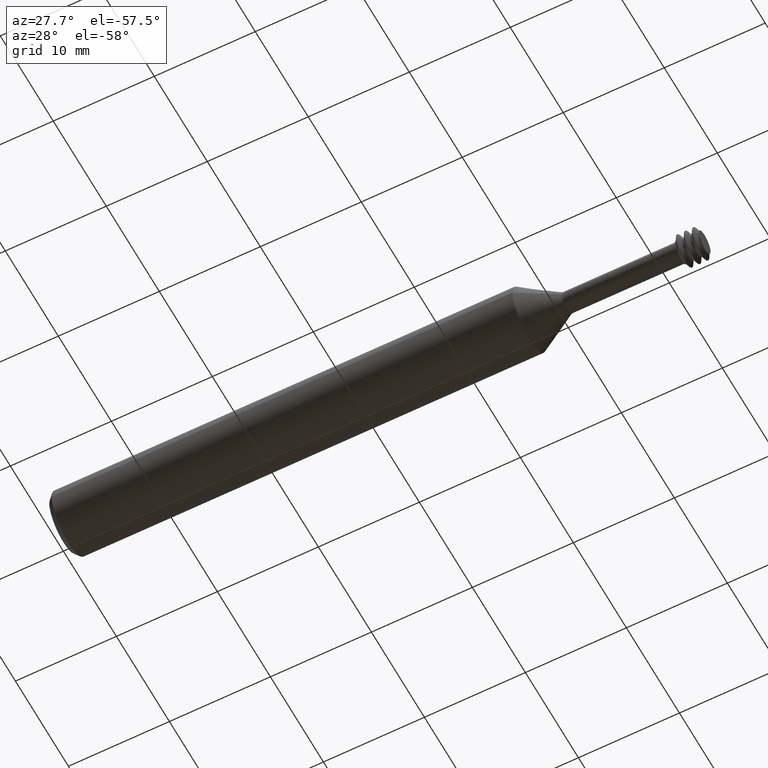
[diagram: clean part render]
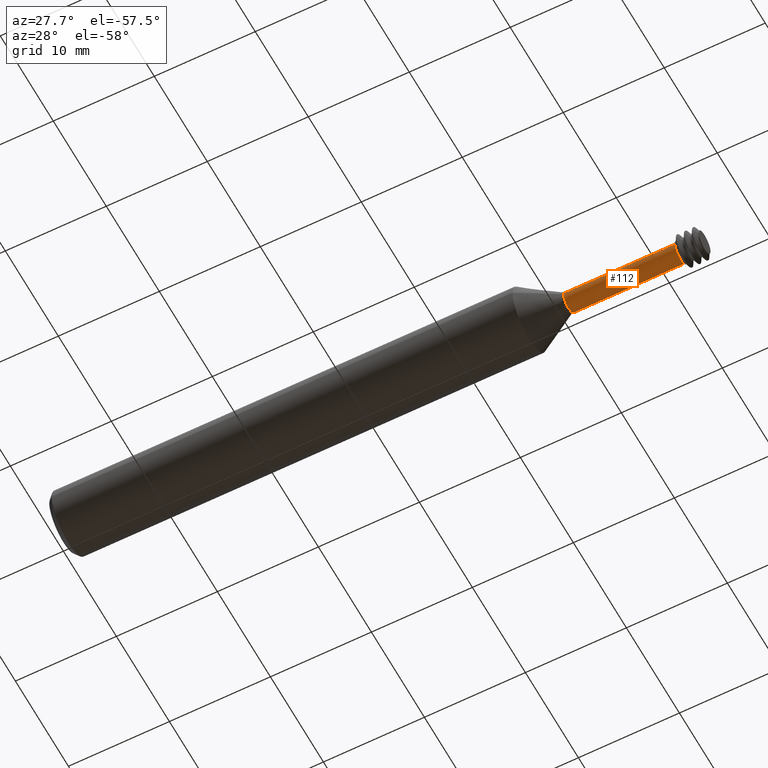
[diagram: same view with one face highlighted and labeled with its STEP entity id]
A machine part, auxiliary view. The second image highlights one B-rep face of the part: STEP entity #112.
In plain terms, the highlighted cylindrical surface (edge-blend (fillet) strip) has radius 1.016 mm, axis along (-1, 0, -0).
Its self-contained STEP definition (entity closure, byte-faithful):
#4 = CARTESIAN_POINT ( 'NONE',  ( 2.406000000000000139, -0.04000000000000004247, 0.000000000000000000 ) ) ;
#35 = DIRECTION ( 'NONE',  ( 1.000000000000000000, -2.239313081137374464E-19, 0.000000000000000000 ) ) ;
#62 = DIRECTION ( 'NONE',  ( -1.000000000000000000, 3.312725351696573770E-18, -0.000000000000000000 ) ) ;
#90 = CIRCLE ( 'NONE', #389, 0.04000000000000004247 ) ;
#112 = ADVANCED_FACE ( 'NONE', ( #324 ), #967, .T. ) ;
#131 = CARTESIAN_POINT ( 'NONE',  ( 1.970000000000000195, -0.04000000000000008410, 0.000000000000000000 ) ) ;
#169 = DIRECTION ( 'NONE',  ( -1.000000000000000000, 3.312725351696573770E-18, -0.000000000000000000 ) ) ;
#188 = CARTESIAN_POINT ( 'NONE',  ( 2.406000000000000139, 3.796279696849373925E-18, 0.000000000000000000 ) ) ;
#242 = CARTESIAN_POINT ( 'NONE',  ( 2.406000000000000139, 3.796279696849373925E-18, 0.000000000000000000 ) ) ;
#243 = AXIS2_PLACEMENT_3D ( 'NONE', #242, #169, #554 ) ;
#268 = ORIENTED_EDGE ( 'NONE', *, *, #919, .F. ) ;
#284 = VECTOR ( 'NONE', #317, 39.37007874015748143 ) ;
#298 = VERTEX_POINT ( 'NONE', #444 ) ;
#314 = VERTEX_POINT ( 'NONE', #131 ) ;
#317 = DIRECTION ( 'NONE',  ( -1.000000000000000000, 3.312725351696573770E-18, -0.000000000000000000 ) ) ;
#324 = FACE_OUTER_BOUND ( 'NONE', #767, .T. ) ;
#358 = EDGE_CURVE ( 'NONE', #696, #314, #605, .T. ) ;
#380 = CARTESIAN_POINT ( 'NONE',  ( 2.406000000000000139, 0.04000000000000004247, 4.898587196589418160E-18 ) ) ;
#387 = ORIENTED_EDGE ( 'NONE', *, *, #358, .T. ) ;
#389 = AXIS2_PLACEMENT_3D ( 'NONE', #188, #35, #618 ) ;
#428 = EDGE_CURVE ( 'NONE', #298, #560, #624, .T. ) ;
#444 = CARTESIAN_POINT ( 'NONE',  ( 2.406000000000000139, 0.04000000000000004247, 4.898587196589418160E-18 ) ) ;
#456 = CIRCLE ( 'NONE', #778, 0.04000000000000009104 ) ;
#550 = VECTOR ( 'NONE', #845, 39.37007874015748143 ) ;
#554 = DIRECTION ( 'NONE',  ( 0.000000000000000000, -1.000000000000000000, 0.000000000000000000 ) ) ;
#560 = VERTEX_POINT ( 'NONE', #732 ) ;
#605 = LINE ( 'NONE', #1001, #550 ) ;
#618 = DIRECTION ( 'NONE',  ( 0.000000000000000000, 1.000000000000000000, 0.000000000000000000 ) ) ;
#624 = LINE ( 'NONE', #380, #284 ) ;
#645 = ORIENTED_EDGE ( 'NONE', *, *, #939, .F. ) ;
#696 = VERTEX_POINT ( 'NONE', #4 ) ;
#732 = CARTESIAN_POINT ( 'NONE',  ( 1.970000000000000195, 0.04000000000000010492, 5.103676647117482034E-18 ) ) ;
#767 = EDGE_LOOP ( 'NONE', ( #780, #268, #387, #645 ) ) ;
#778 = AXIS2_PLACEMENT_3D ( 'NONE', #943, #62, #932 ) ;
#780 = ORIENTED_EDGE ( 'NONE', *, *, #428, .F. ) ;
#845 = DIRECTION ( 'NONE',  ( -1.000000000000000000, 3.312725351696573770E-18, -0.000000000000000000 ) ) ;
#919 = EDGE_CURVE ( 'NONE', #696, #298, #90, .T. ) ;
#932 = DIRECTION ( 'NONE',  ( 0.000000000000000000, -1.000000000000000000, 0.000000000000000000 ) ) ;
#939 = EDGE_CURVE ( 'NONE', #560, #314, #456, .T. ) ;
#943 = CARTESIAN_POINT ( 'NONE',  ( 1.970000000000000195, 5.240627950189079767E-18, 0.000000000000000000 ) ) ;
#967 = CYLINDRICAL_SURFACE ( 'NONE', #243, 0.04000000000000004247 ) ;
#1001 = CARTESIAN_POINT ( 'NONE',  ( 2.406000000000000139, -0.04000000000000004247, 0.000000000000000000 ) ) ;